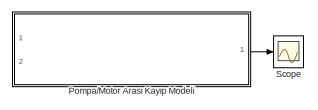
[diagram: root canvas - part 1/2, top left region]
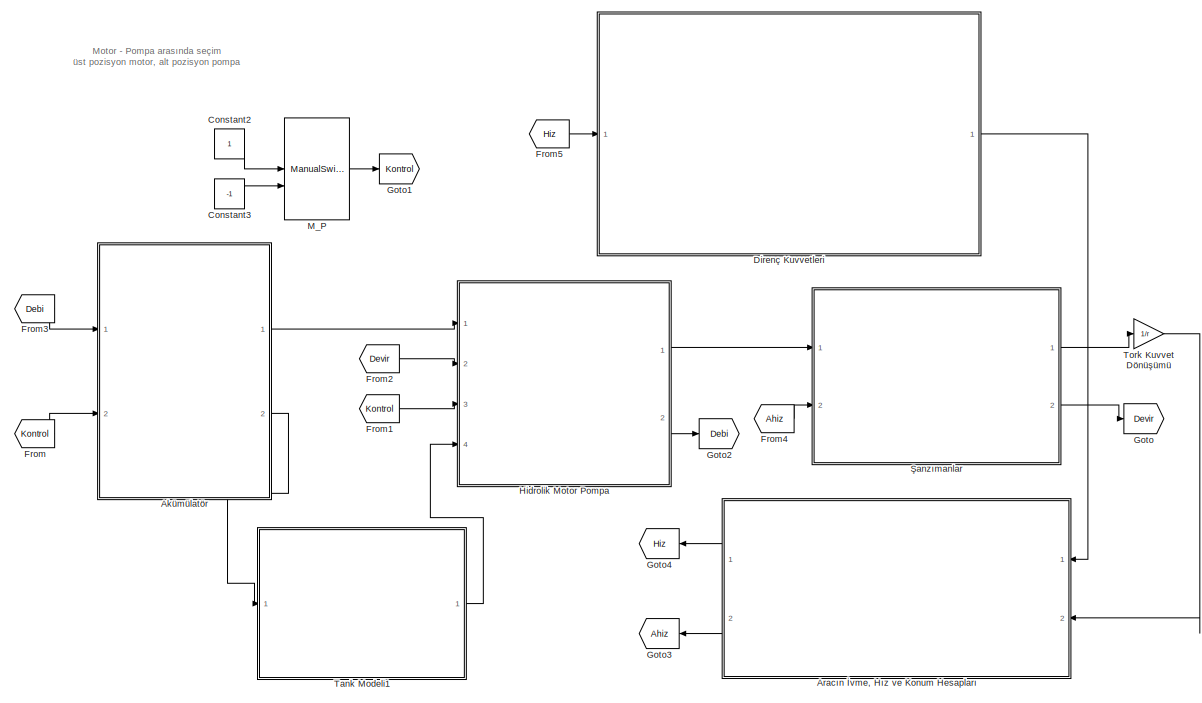
[diagram: root canvas - part 2/2, right side, full height]
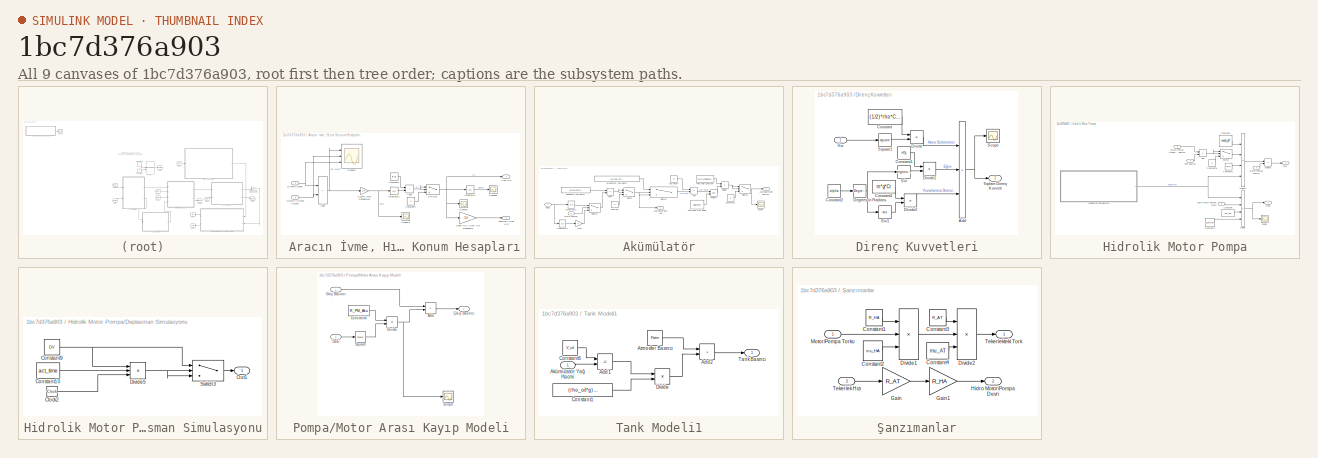
[diagram: thumbnail index - all 9 canvases of the model, root first then tree order]
MODEL slx_1bc7d376a903
KIND model
CONFIG AbsTol = auto
CONFIG EnableMultiTasking = off
CONFIG FixedStep = auto
CONFIG MaxStep = auto
CONFIG MinStep = auto
CONFIG RelTol = 1e-3
CONFIG SampleTimeConstraint = Unconstrained
CONFIG SolverName = VariableStepAuto
CONFIG StartTime = 0.0
CONFIG StopTime = T_sim
BLOCK [SubSystem]  Aracın İvme, Hız ve Konum Hesapları
  Ports = [2, 2]
  RequestExecContextInheritance = off
BLOCK [Sum]  Aracın İvme, Hız ve Konum Hesapları/Add2
  IconShape = rectangular
  Inputs = -+
  Ports = [2, 1]
BLOCK [Sum]  Aracın İvme, Hız ve Konum Hesapları/Add3
  IconShape = rectangular
  Ports = [2, 1]
BLOCK [Outport]  Aracın İvme, Hız ve Konum Hesapları/Araç Hızı
BLOCK [Constant]  Aracın İvme, Hız ve Konum Hesapları/Constant4
  Value = 0
BLOCK [Constant]  Aracın İvme, Hız ve Konum Hesapları/Constant5
  Value = ilk_hiz
BLOCK [Inport]  Aracın İvme, Hız ve Konum Hesapları/Direnç Kuvveti
BLOCK [Inport]  Aracın İvme, Hız ve Konum Hesapları/Hidrolik Sistem Kuvveti
  Port = 2
BLOCK [Integrator]  Aracın İvme, Hız ve Konum Hesapları/Integrator2
  Ports = [1, 1]
BLOCK [Integrator]  Aracın İvme, Hız ve Konum Hesapları/Integrator3
  Ports = [1, 1]
BLOCK [Gain]  Aracın İvme, Hız ve Konum Hesapları/Kuvvet ivme Dönüşümü1
  Gain = 1/m
BLOCK [Gain]  Aracın İvme, Hız ve Konum Hesapları/Lineer Hız Açısal Hız Dönüşümü
  Gain = 1/r
BLOCK [Scope]  Aracın İvme, Hız ve Konum Hesapları/Scope13
  Floating = off
  NumInputPorts = 3
  Ports = [3]
  ScopeSpecificationString = Simulink.scopes.TimeScopeBlockCfg('CurrentConfiguration', extmgr.ConfigurationSet(extmgr.Configuration('Core','General UI',true),extmgr.Configuration('Core','Source UI',true),extmgr.Configuration('Sources','WiredSimulink',true,'DataLoggingVariableName','ScopeData1'),extmgr.Configuration('Visuals','Time Domain',true,'SerializedDisplays',{struct('MinYLimReal','-5369.40955','MaxYLimReal','35243.77507...<+1509ch>
BLOCK [Scope]  Aracın İvme, Hız ve Konum Hesapları/Scope14
  Floating = off
  NumInputPorts = 1
  Ports = [1]
  ScopeSpecificationString = Simulink.scopes.TimeScopeBlockCfg('CurrentConfiguration', extmgr.ConfigurationSet(extmgr.Configuration('Core','General UI',true),extmgr.Configuration('Core','Source UI',true),extmgr.Configuration('Sources','WiredSimulink',true,'DataLoggingVariableName','Acceleration','DataLogging',true,'DataLoggingSaveFormat','Array'),extmgr.Configuration('Visuals','Time Domain',true,'SerializedDisplays',{struct('...<+1531ch>
BLOCK [Scope]  Aracın İvme, Hız ve Konum Hesapları/Scope15
  Floating = off
  NumInputPorts = 1
  Ports = [1]
  ScopeSpecificationString = Simulink.scopes.TimeScopeBlockCfg('CurrentConfiguration', extmgr.ConfigurationSet(extmgr.Configuration('Core','General UI',true),extmgr.Configuration('Core','Source UI',true),extmgr.Configuration('Sources','WiredSimulink',true,'DataLoggingVariableName','Velocity','DataLogging',true,'DataLoggingSaveFormat','Array'),extmgr.Configuration('Visuals','Time Domain',true,'SerializedDisplays',{struct('MinY...<+1482ch>
BLOCK [Scope]  Aracın İvme, Hız ve Konum Hesapları/Scope16
  Floating = off
  NumInputPorts = 1
  Ports = [1]
  ScopeSpecificationString = Simulink.scopes.TimeScopeBlockCfg('CurrentConfiguration', extmgr.ConfigurationSet(extmgr.Configuration('Core','General UI',true),extmgr.Configuration('Core','Source UI',true),extmgr.Configuration('Sources','WiredSimulink',true,'DataLoggingVariableName','Displacement','DataLogging',true,'DataLoggingSaveFormat','Array'),extmgr.Configuration('Visuals','Time Domain',true,'SerializedDisplays',{struct('...<+1501ch>
BLOCK [Switch]  Aracın İvme, Hız ve Konum Hesapları/Switch1
  Criteria = u2 > Threshold
  InputSameDT = off
  SaturateOnIntegerOverflow = off
BLOCK [Outport]  Aracın İvme, Hız ve Konum Hesapları/Tekerlek Açısal Hızı
  Port = 2
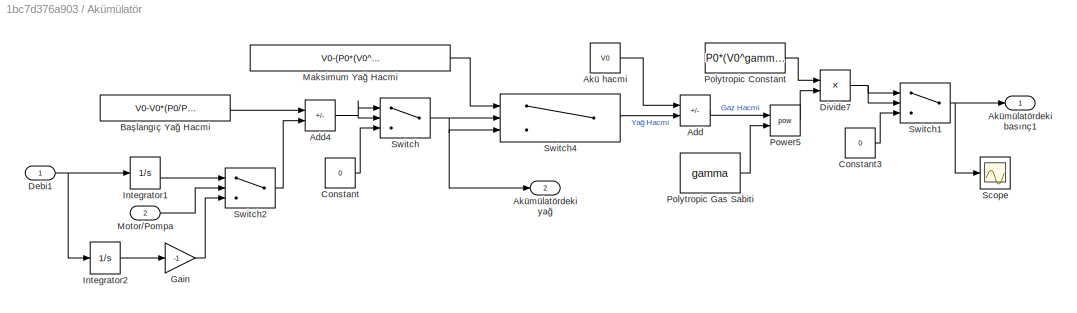
BLOCK [SubSystem] Akümülatör
  Ports = [2, 2]
  RequestExecContextInheritance = off
BLOCK [Sum] Akümülatör/Add
  IconShape = rectangular
  Inputs = +-
  Ports = [2, 1]
BLOCK [Sum] Akümülatör/Add4
  IconShape = rectangular
  Inputs = +-
  Ports = [2, 1]
BLOCK [Constant] Akümülatör/Akü hacmi 
  Value = V0
BLOCK [Outport] Akümülatör/Akümülatördeki basınç1
BLOCK [Outport] Akümülatör/Akümülatördeki yağ 
  Port = 2
BLOCK [Constant] Akümülatör/Başlangıç Yağ Hacmi
  Value = V0-V0*(P0/P1)^(1/gamma)
BLOCK [Constant] Akümülatör/Constant
  Value = 0
BLOCK [Constant] Akümülatör/Constant3
  Value = 0
BLOCK [Inport] Akümülatör/Debi1
BLOCK [Product] Akümülatör/Divide7
  Inputs = */
  Ports = [2, 1]
BLOCK [Gain] Akümülatör/Gain
  Gain = -1
BLOCK [Integrator] Akümülatör/Integrator1
  Ports = [1, 1]
BLOCK [Integrator] Akümülatör/Integrator2
  Ports = [1, 1]
BLOCK [Constant] Akümülatör/Maksimum Yağ Hacmi
  Value = V0-(P0*(V0^gamma)/Pmax)^(1/gamma)
BLOCK [Inport] Akümülatör/Motor//Pompa
  Port = 2
BLOCK [Constant] Akümülatör/Polytropic Constant
  Value = P0*(V0^gamma)
BLOCK [Constant] Akümülatör/Polytropic Gas Sabiti
  Value = gamma
BLOCK [Math] Akümülatör/Power5
  Operator = pow
  Ports = [2, 1]
BLOCK [Scope] Akümülatör/Scope
  Floating = off
  NumInputPorts = 1
  Ports = [1]
  ScopeSpecificationString = Simulink.scopes.TimeScopeBlockCfg('CurrentConfiguration', extmgr.ConfigurationSet(extmgr.Configuration('Core','General UI',true),extmgr.Configuration('Core','Source UI',true),extmgr.Configuration('Sources','WiredSimulink',true,'DataLoggingVariableName','AccPressure','DataLogging',true,'DataLoggingSaveFormat','Array'),extmgr.Configuration('Visuals','Time Domain',true,'SerializedDisplays',{struct('M...<+1427ch>
BLOCK [Switch] Akümülatör/Switch
  Criteria = u2 > Threshold
  InputSameDT = off
  SaturateOnIntegerOverflow = off
BLOCK [Switch] Akümülatör/Switch1
  Criteria = u2 > Threshold
  InputSameDT = off
  SaturateOnIntegerOverflow = off
  Threshold = P0
BLOCK [Switch] Akümülatör/Switch2
  InputSameDT = off
  SaturateOnIntegerOverflow = off
BLOCK [Switch] Akümülatör/Switch4
  Criteria = u2 > Threshold
  InputSameDT = off
  SaturateOnIntegerOverflow = off
  Threshold = V0-(P0*(V0^gamma)/Pmax)^(1/gamma)
BLOCK [Constant] Constant2
BLOCK [Constant] Constant3
  Value = -1
BLOCK [SubSystem] Direnç Kuvvetleri
  Ports = [1, 1]
  RequestExecContextInheritance = off
BLOCK [Sum] Direnç Kuvvetleri/Add
  IconShape = rectangular
  Inputs = +++
  Ports = [3, 1]
BLOCK [Constant] Direnç Kuvvetleri/Constant
  Value = (1/2)*rho*Cd*A
BLOCK [Constant] Direnç Kuvvetleri/Constant1
  Value = m*g
BLOCK [Constant] Direnç Kuvvetleri/Constant2
  Value = alpha
BLOCK [Constant] Direnç Kuvvetleri/Constant4
  Value = m*g*Cr
BLOCK [Reference] Direnç Kuvvetleri/Degrees to Radians  REF=simulink_extras/Transformations/Degrees to
Radians
  Ports = [1, 1]
  SourceBlock = simulink_extras/Transformations/Degrees to\nRadians
  SourceProductBaseCode = SL
  SourceType = DegreesToRadians
BLOCK [Product] Direnç Kuvvetleri/Divide
  Inputs = **
  Ports = [2, 1]
BLOCK [Product] Direnç Kuvvetleri/Divide1
  Inputs = **
  Ports = [2, 1]
BLOCK [Product] Direnç Kuvvetleri/Divide2
  Inputs = **
  Ports = [2, 1]
BLOCK [Inport] Direnç Kuvvetleri/Hız
  NameLocation = top
BLOCK [Scope] Direnç Kuvvetleri/Scope
  Floating = off
  NumInputPorts = 1
  Ports = [1]
  ScopeSpecificationString = Simulink.scopes.TimeScopeBlockCfg('CurrentConfiguration', extmgr.ConfigurationSet(extmgr.Configuration('Core','General UI',true),extmgr.Configuration('Core','Source UI',true),extmgr.Configuration('Sources','WiredSimulink',true,'DataLoggingVariableName','ResForce','DataLogging',true,'DataLoggingSaveFormat','Array'),extmgr.Configuration('Visuals','Time Domain',true,'SerializedDisplays',{struct('MinY...<+1465ch>
BLOCK [Trigonometry] Direnç Kuvvetleri/Sin
  Ports = [1, 1]
BLOCK [Trigonometry] Direnç Kuvvetleri/Sin1
  Operator = cos
  Ports = [1, 1]
BLOCK [Math] Direnç Kuvvetleri/Square1
  Operator = square
  Ports = [1, 1]
BLOCK [Outport] Direnç Kuvvetleri/Toplam Direnç Kuvveti
BLOCK [From] From
  GotoTag = Kontrol
BLOCK [From] From1
  GotoTag = Kontrol
BLOCK [From] From2
  GotoTag = Devir
BLOCK [From] From3
  GotoTag = Debi
BLOCK [From] From4
  GotoTag = Ahiz
BLOCK [From] From5
  GotoTag = Hiz
BLOCK [Goto] Goto
  GotoTag = Devir
BLOCK [Goto] Goto1
  GotoTag = Kontrol
BLOCK [Goto] Goto2
  GotoTag = Debi
BLOCK [Goto] Goto3
  GotoTag = Ahiz
BLOCK [Goto] Goto4
  GotoTag = Hiz
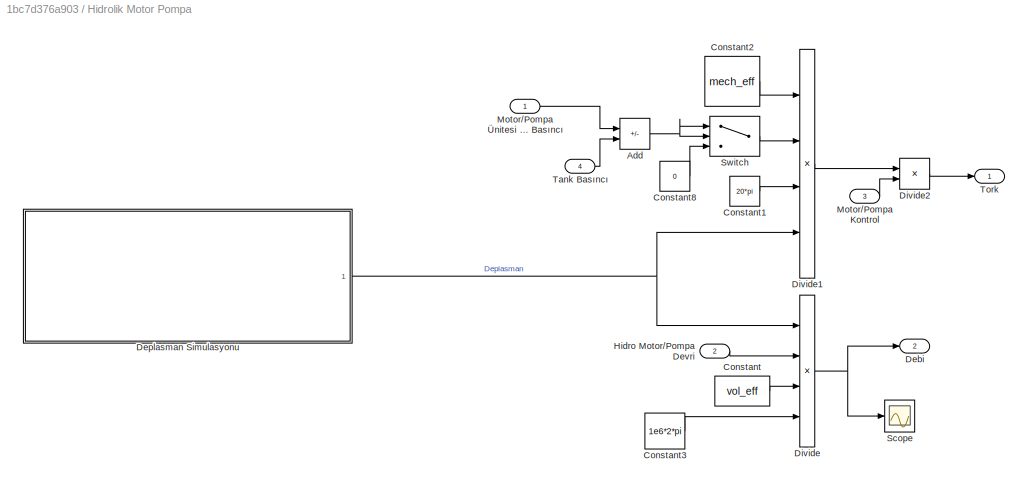
BLOCK [SubSystem] Hidrolik Motor Pompa
  Ports = [4, 2]
  RequestExecContextInheritance = off
BLOCK [Sum] Hidrolik Motor Pompa/Add
  IconShape = rectangular
  Inputs = +-
  Ports = [2, 1]
BLOCK [Constant] Hidrolik Motor Pompa/Constant
  Value = vol_eff
BLOCK [Constant] Hidrolik Motor Pompa/Constant1
  Value = 20*pi
BLOCK [Constant] Hidrolik Motor Pompa/Constant2
  Value = mech_eff
BLOCK [Constant] Hidrolik Motor Pompa/Constant3
  Value = 1e6*2*pi
BLOCK [Constant] Hidrolik Motor Pompa/Constant8
  Value = 0
BLOCK [Outport] Hidrolik Motor Pompa/Debi
  Port = 2
BLOCK [SubSystem] Hidrolik Motor Pompa/Deplasman Simulasyonu
  Ports = [0, 1]
  RequestExecContextInheritance = off
BLOCK [Clock] Hidrolik Motor Pompa/Deplasman Simulasyonu/Clock2
BLOCK [Constant] Hidrolik Motor Pompa/Deplasman Simulasyonu/Constant10
  Value = act_time
BLOCK [Constant] Hidrolik Motor Pompa/Deplasman Simulasyonu/Constant9
  Value = DV
BLOCK [Product] Hidrolik Motor Pompa/Deplasman Simulasyonu/Divide5
  Inputs = */*
  Ports = [3, 1]
BLOCK [Outport] Hidrolik Motor Pompa/Deplasman Simulasyonu/Out1
BLOCK [Switch] Hidrolik Motor Pompa/Deplasman Simulasyonu/Switch3
  InputSameDT = off
  SaturateOnIntegerOverflow = off
  Threshold = DV
BLOCK [Product] Hidrolik Motor Pompa/Divide
  Inputs = **//
  Ports = [4, 1]
BLOCK [Product] Hidrolik Motor Pompa/Divide1
  Inputs = **/*
  Ports = [4, 1]
BLOCK [Product] Hidrolik Motor Pompa/Divide2
  Inputs = **
  Ports = [2, 1]
BLOCK [Inport] Hidrolik Motor Pompa/Hidro Motor//Pompa Devri
  Port = 2
BLOCK [Inport] Hidrolik Motor Pompa/Motor//Pompa Kontrol
  Port = 3
BLOCK [Inport] Hidrolik Motor Pompa/Motor//Pompa Ünitesi Giriş Basıncı
BLOCK [Scope] Hidrolik Motor Pompa/Scope
  Floating = off
  NumInputPorts = 1
  Ports = [1]
  ScopeSpecificationString = Simulink.scopes.TimeScopeBlockCfg('CurrentConfiguration', extmgr.ConfigurationSet(extmgr.Configuration('Core','General UI',true),extmgr.Configuration('Core','Source UI',true),extmgr.Configuration('Sources','WiredSimulink',true,'DataLoggingVariableName','flowrt','DataLogging',true,'DataLoggingSaveFormat','Array'),extmgr.Configuration('Visuals','Time Domain',true,'SerializedDisplays',{struct('MinYLi...<+1412ch>
BLOCK [Switch] Hidrolik Motor Pompa/Switch
  Criteria = u2 > Threshold
  InputSameDT = off
  SaturateOnIntegerOverflow = off
BLOCK [Inport] Hidrolik Motor Pompa/Tank Basıncı
  Port = 4
BLOCK [Outport] Hidrolik Motor Pompa/Tork
BLOCK [ManualSwitch] M_P
  CurrentSetting = 0
BLOCK [SubSystem] Pompa//Motor Arası Kayıp Modeli
  Ports = [2, 1]
  RequestExecContextInheritance = off
BLOCK [Sum] Pompa//Motor Arası Kayıp Modeli/Add
  IconShape = rectangular
  Inputs = +-
  Ports = [2, 1]
BLOCK [Constant] Pompa//Motor Arası Kayıp Modeli/Constant4
  Value = R_PM_Aku
BLOCK [Inport] Pompa//Motor Arası Kayıp Modeli/Debi
  Port = 2
BLOCK [Product] Pompa//Motor Arası Kayıp Modeli/Divide
  Inputs = **
  Ports = [2, 1]
BLOCK [Inport] Pompa//Motor Arası Kayıp Modeli/Giriş Basıncı
BLOCK [Scope] Pompa//Motor Arası Kayıp Modeli/Scope
  Floating = off
  NumInputPorts = 1
  Ports = [1]
  ScopeSpecificationString = Simulink.scopes.TimeScopeBlockCfg('CurrentConfiguration', extmgr.ConfigurationSet(extmgr.Configuration('Core','General UI',true),extmgr.Configuration('Core','Source UI',true),extmgr.Configuration('Sources','WiredSimulink',true,'DataLoggingVariableName','ScopeData2'),extmgr.Configuration('Visuals','Time Domain',true,'SerializedDisplays',{struct('MinYLimReal','-0.00000006','MaxYLimReal','0.00000054'...<+1417ch>
BLOCK [Math] Pompa//Motor Arası Kayıp Modeli/Square
  Operator = square
  Ports = [1, 1]
BLOCK [Outport] Pompa//Motor Arası Kayıp Modeli/Çıkış Basıncı
BLOCK [Scope] Scope
  Floating = off
  NumInputPorts = 1
  Ports = [1]
  ScopeSpecificationString = Simulink.scopes.TimeScopeBlockCfg('CurrentConfiguration', extmgr.ConfigurationSet(extmgr.Configuration('Core','General UI',true),extmgr.Configuration('Core','Source UI',true),extmgr.Configuration('Sources','WiredSimulink',true,'DataLoggingVariableName','ScopeData4'),extmgr.Configuration('Visuals','Time Domain',true,'SerializedDisplays',{struct('MinYLimReal','-49.375','MaxYLimReal','444.375','YLabe...<+1497ch>
BLOCK [SubSystem] Tank Modeli1
  Ports = [1, 1]
  RequestExecContextInheritance = off
BLOCK [Sum] Tank Modeli1/Add1
  IconShape = rectangular
  Inputs = +-
  Ports = [2, 1]
BLOCK [Sum] Tank Modeli1/Add2
  IconShape = rectangular
  Ports = [2, 1]
BLOCK [Inport] Tank Modeli1/Akümülatör Yağ Hacmi
BLOCK [Constant] Tank Modeli1/Atmosfer Basıncı
  Value = Patm
BLOCK [Constant] Tank Modeli1/Constant1
  Value = (rho_oil*g)/(A_Tank*1e5)
BLOCK [Constant] Tank Modeli1/Constant6
  Value = V_oil
BLOCK [Product] Tank Modeli1/Divide
  Inputs = **
  Ports = [2, 1]
BLOCK [Outport] Tank Modeli1/Tank Basıncı
BLOCK [Gain] Tork Kuvvet Dönüşümü
  Gain = 1/r
BLOCK [SubSystem] Şanzımanlar
  Ports = [2, 2]
  RequestExecContextInheritance = off
BLOCK [Constant] Şanzımanlar/Constant1
  Value = R_HA
BLOCK [Constant] Şanzımanlar/Constant2
  Value = mu_HA
BLOCK [Constant] Şanzımanlar/Constant3
  Value = R_AT
BLOCK [Constant] Şanzımanlar/Constant4
  Value = mu_AT
BLOCK [Product] Şanzımanlar/Divide1
  Inputs = ***
  Ports = [3, 1]
BLOCK [Product] Şanzımanlar/Divide2
  Inputs = ***
  Ports = [3, 1]
BLOCK [Gain] Şanzımanlar/Gain
  Gain = R_AT
BLOCK [Gain] Şanzımanlar/Gain1
  Gain = R_HA
BLOCK [Outport] Şanzımanlar/Hidro Motor//Pompa Devri
  Port = 2
BLOCK [Inport] Şanzımanlar/Motor//Pompa Torku
BLOCK [Inport] Şanzımanlar/Tekerlek Hızı
  Port = 2
BLOCK [Outport] Şanzımanlar/Tekerlekteki Tork
ANNOTATION (root): Motor - Pompa arasında seçim üst pozisyon motor, alt pozisyon pompa
NET  Aracın İvme, Hız ve Konum Hesapları/Add2:1 ->  Aracın İvme, Hız ve Konum Hesapları/Kuvvet ivme Dönüşümü1:1,  Aracın İvme, Hız ve Konum Hesapları/Scope13:1
NET  Aracın İvme, Hız ve Konum Hesapları/Add3:1 ->  Aracın İvme, Hız ve Konum Hesapları/Switch1:1,  Aracın İvme, Hız ve Konum Hesapları/Switch1:2
LINE  Aracın İvme, Hız ve Konum Hesapları/Constant4:1 ->  Aracın İvme, Hız ve Konum Hesapları/Switch1:3
LINE  Aracın İvme, Hız ve Konum Hesapları/Constant5:1 ->  Aracın İvme, Hız ve Konum Hesapları/Add3:1
NET  Aracın İvme, Hız ve Konum Hesapları/Direnç Kuvveti:1 ->  Aracın İvme, Hız ve Konum Hesapları/Add2:1,  Aracın İvme, Hız ve Konum Hesapları/Scope13:3
NET  Aracın İvme, Hız ve Konum Hesapları/Hidrolik Sistem Kuvveti:1 ->  Aracın İvme, Hız ve Konum Hesapları/Add2:2,  Aracın İvme, Hız ve Konum Hesapları/Scope13:2
LINE  Aracın İvme, Hız ve Konum Hesapları/Integrator2:1 ->  Aracın İvme, Hız ve Konum Hesapları/Add3:2
LINE  Aracın İvme, Hız ve Konum Hesapları/Integrator3:1 ->  Aracın İvme, Hız ve Konum Hesapları/Scope16:1
NET  Aracın İvme, Hız ve Konum Hesapları/Kuvvet ivme Dönüşümü1:1 ->  Aracın İvme, Hız ve Konum Hesapları/Integrator2:1,  Aracın İvme, Hız ve Konum Hesapları/Scope14:1
LINE  Aracın İvme, Hız ve Konum Hesapları/Lineer Hız Açısal Hız Dönüşümü:1 ->  Aracın İvme, Hız ve Konum Hesapları/Tekerlek Açısal Hızı:1
NET  Aracın İvme, Hız ve Konum Hesapları/Switch1:1 ->  Aracın İvme, Hız ve Konum Hesapları/Araç Hızı:1,  Aracın İvme, Hız ve Konum Hesapları/Integrator3:1,  Aracın İvme, Hız ve Konum Hesapları/Lineer Hız Açısal Hız Dönüşümü:1,  Aracın İvme, Hız ve Konum Hesapları/Scope15:1
LINE  Aracın İvme, Hız ve Konum Hesapları:1 -> Goto4:1
LINE  Aracın İvme, Hız ve Konum Hesapları:2 -> Goto3:1
NET Akümülatör/Add4:1 -> Akümülatör/Switch:1, Akümülatör/Switch:2
LINE Akümülatör/Add:1 -> Akümülatör/Power5:1
LINE Akümülatör/Akü hacmi :1 -> Akümülatör/Add:1
LINE Akümülatör/Başlangıç Yağ Hacmi:1 -> Akümülatör/Add4:1
LINE Akümülatör/Constant3:1 -> Akümülatör/Switch1:3
LINE Akümülatör/Constant:1 -> Akümülatör/Switch:3
NET Akümülatör/Debi1:1 -> Akümülatör/Integrator1:1, Akümülatör/Integrator2:1
NET Akümülatör/Divide7:1 -> Akümülatör/Switch1:1, Akümülatör/Switch1:2
LINE Akümülatör/Gain:1 -> Akümülatör/Switch2:3
LINE Akümülatör/Integrator1:1 -> Akümülatör/Switch2:1
LINE Akümülatör/Integrator2:1 -> Akümülatör/Gain:1
LINE Akümülatör/Maksimum Yağ Hacmi:1 -> Akümülatör/Switch4:1
LINE Akümülatör/Motor//Pompa:1 -> Akümülatör/Switch2:2
LINE Akümülatör/Polytropic Constant:1 -> Akümülatör/Divide7:1
LINE Akümülatör/Polytropic Gas Sabiti:1 -> Akümülatör/Power5:2
LINE Akümülatör/Power5:1 -> Akümülatör/Divide7:2
NET Akümülatör/Switch1:1 -> Akümülatör/Akümülatördeki basınç1:1, Akümülatör/Scope:1
LINE Akümülatör/Switch2:1 -> Akümülatör/Add4:2
LINE Akümülatör/Switch4:1 -> Akümülatör/Add:2
NET Akümülatör/Switch:1 -> Akümülatör/Akümülatördeki yağ :1, Akümülatör/Switch4:2, Akümülatör/Switch4:3
LINE Akümülatör:1 -> Hidrolik Motor Pompa:1
LINE Akümülatör:2 -> Tank Modeli1:1
LINE Constant2:1 -> M_P:1
LINE Constant3:1 -> M_P:2
NET Direnç Kuvvetleri/Add:1 -> Direnç Kuvvetleri/Scope:1, Direnç Kuvvetleri/Toplam Direnç Kuvveti:1
LINE Direnç Kuvvetleri/Constant1:1 -> Direnç Kuvvetleri/Divide1:1
LINE Direnç Kuvvetleri/Constant2:1 -> Direnç Kuvvetleri/Degrees to Radians:1
LINE Direnç Kuvvetleri/Constant4:1 -> Direnç Kuvvetleri/Divide2:1
LINE Direnç Kuvvetleri/Constant:1 -> Direnç Kuvvetleri/Divide:1
NET Direnç Kuvvetleri/Degrees to Radians:1 -> Direnç Kuvvetleri/Sin1:1, Direnç Kuvvetleri/Sin:1
LINE Direnç Kuvvetleri/Divide1:1 -> Direnç Kuvvetleri/Add:2
LINE Direnç Kuvvetleri/Divide2:1 -> Direnç Kuvvetleri/Add:3
LINE Direnç Kuvvetleri/Divide:1 -> Direnç Kuvvetleri/Add:1
LINE Direnç Kuvvetleri/Hız:1 -> Direnç Kuvvetleri/Square1:1
LINE Direnç Kuvvetleri/Sin1:1 -> Direnç Kuvvetleri/Divide2:2
LINE Direnç Kuvvetleri/Sin:1 -> Direnç Kuvvetleri/Divide1:2
LINE Direnç Kuvvetleri/Square1:1 -> Direnç Kuvvetleri/Divide:2
LINE Direnç Kuvvetleri:1 ->  Aracın İvme, Hız ve Konum Hesapları:1
LINE From1:1 -> Hidrolik Motor Pompa:3
LINE From2:1 -> Hidrolik Motor Pompa:2
LINE From3:1 -> Akümülatör:1
LINE From4:1 -> Şanzımanlar:2
LINE From5:1 -> Direnç Kuvvetleri:1
LINE From:1 -> Akümülatör:2
NET Hidrolik Motor Pompa/Add:1 -> Hidrolik Motor Pompa/Switch:1, Hidrolik Motor Pompa/Switch:2
LINE Hidrolik Motor Pompa/Constant1:1 -> Hidrolik Motor Pompa/Divide1:3
LINE Hidrolik Motor Pompa/Constant2:1 -> Hidrolik Motor Pompa/Divide1:1
LINE Hidrolik Motor Pompa/Constant3:1 -> Hidrolik Motor Pompa/Divide:4
LINE Hidrolik Motor Pompa/Constant8:1 -> Hidrolik Motor Pompa/Switch:3
LINE Hidrolik Motor Pompa/Constant:1 -> Hidrolik Motor Pompa/Divide:3
LINE Hidrolik Motor Pompa/Deplasman Simulasyonu/Clock2:1 -> Hidrolik Motor Pompa/Deplasman Simulasyonu/Divide5:3
LINE Hidrolik Motor Pompa/Deplasman Simulasyonu/Constant10:1 -> Hidrolik Motor Pompa/Deplasman Simulasyonu/Divide5:2
NET Hidrolik Motor Pompa/Deplasman Simulasyonu/Constant9:1 -> Hidrolik Motor Pompa/Deplasman Simulasyonu/Divide5:1, Hidrolik Motor Pompa/Deplasman Simulasyonu/Switch3:1
NET Hidrolik Motor Pompa/Deplasman Simulasyonu/Divide5:1 -> Hidrolik Motor Pompa/Deplasman Simulasyonu/Switch3:2, Hidrolik Motor Pompa/Deplasman Simulasyonu/Switch3:3
LINE Hidrolik Motor Pompa/Deplasman Simulasyonu/Switch3:1 -> Hidrolik Motor Pompa/Deplasman Simulasyonu/Out1:1
NET Hidrolik Motor Pompa/Deplasman Simulasyonu:1 -> Hidrolik Motor Pompa/Divide1:4, Hidrolik Motor Pompa/Divide:1
LINE Hidrolik Motor Pompa/Divide1:1 -> Hidrolik Motor Pompa/Divide2:1
LINE Hidrolik Motor Pompa/Divide2:1 -> Hidrolik Motor Pompa/Tork:1
NET Hidrolik Motor Pompa/Divide:1 -> Hidrolik Motor Pompa/Debi:1, Hidrolik Motor Pompa/Scope:1
LINE Hidrolik Motor Pompa/Hidro Motor//Pompa Devri:1 -> Hidrolik Motor Pompa/Divide:2
LINE Hidrolik Motor Pompa/Motor//Pompa Kontrol:1 -> Hidrolik Motor Pompa/Divide2:2
LINE Hidrolik Motor Pompa/Motor//Pompa Ünitesi Giriş Basıncı:1 -> Hidrolik Motor Pompa/Add:1
LINE Hidrolik Motor Pompa/Switch:1 -> Hidrolik Motor Pompa/Divide1:2
LINE Hidrolik Motor Pompa/Tank Basıncı:1 -> Hidrolik Motor Pompa/Add:2
LINE Hidrolik Motor Pompa:1 -> Şanzımanlar:1
LINE Hidrolik Motor Pompa:2 -> Goto2:1
LINE M_P:1 -> Goto1:1
LINE Pompa//Motor Arası Kayıp Modeli/Add:1 -> Pompa//Motor Arası Kayıp Modeli/Çıkış Basıncı:1
LINE Pompa//Motor Arası Kayıp Modeli/Constant4:1 -> Pompa//Motor Arası Kayıp Modeli/Divide:1
LINE Pompa//Motor Arası Kayıp Modeli/Debi:1 -> Pompa//Motor Arası Kayıp Modeli/Square:1
NET Pompa//Motor Arası Kayıp Modeli/Divide:1 -> Pompa//Motor Arası Kayıp Modeli/Add:2, Pompa//Motor Arası Kayıp Modeli/Scope:1
LINE Pompa//Motor Arası Kayıp Modeli/Giriş Basıncı:1 -> Pompa//Motor Arası Kayıp Modeli/Add:1
LINE Pompa//Motor Arası Kayıp Modeli/Square:1 -> Pompa//Motor Arası Kayıp Modeli/Divide:2
LINE Pompa//Motor Arası Kayıp Modeli:1 -> Scope:1
LINE Tank Modeli1/Add1:1 -> Tank Modeli1/Divide:1
LINE Tank Modeli1/Add2:1 -> Tank Modeli1/Tank Basıncı:1
LINE Tank Modeli1/Akümülatör Yağ Hacmi:1 -> Tank Modeli1/Add1:2
LINE Tank Modeli1/Atmosfer Basıncı:1 -> Tank Modeli1/Add2:1
LINE Tank Modeli1/Constant1:1 -> Tank Modeli1/Divide:2
LINE Tank Modeli1/Constant6:1 -> Tank Modeli1/Add1:1
LINE Tank Modeli1/Divide:1 -> Tank Modeli1/Add2:2
LINE Tank Modeli1:1 -> Hidrolik Motor Pompa:4
LINE Tork Kuvvet Dönüşümü:1 ->  Aracın İvme, Hız ve Konum Hesapları:2
LINE Şanzımanlar/Constant1:1 -> Şanzımanlar/Divide1:1
LINE Şanzımanlar/Constant2:1 -> Şanzımanlar/Divide1:3
LINE Şanzımanlar/Constant3:1 -> Şanzımanlar/Divide2:1
LINE Şanzımanlar/Constant4:1 -> Şanzımanlar/Divide2:3
LINE Şanzımanlar/Divide1:1 -> Şanzımanlar/Divide2:2
LINE Şanzımanlar/Divide2:1 -> Şanzımanlar/Tekerlekteki Tork:1
LINE Şanzımanlar/Gain1:1 -> Şanzımanlar/Hidro Motor//Pompa Devri:1
LINE Şanzımanlar/Gain:1 -> Şanzımanlar/Gain1:1
LINE Şanzımanlar/Motor//Pompa Torku:1 -> Şanzımanlar/Divide1:2
LINE Şanzımanlar/Tekerlek Hızı:1 -> Şanzımanlar/Gain:1
LINE Şanzımanlar:1 -> Tork Kuvvet Dönüşümü:1
LINE Şanzımanlar:2 -> Goto:1
note: NET lines group one-source signal fan-out (src -> all destinations, sorted); 1:1 wires keep LINE
